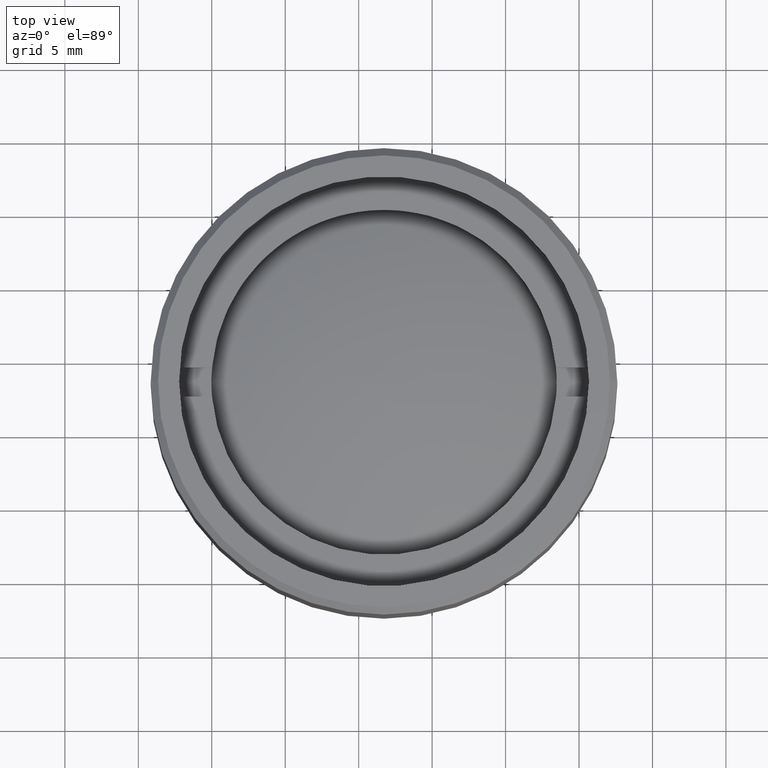
[diagram: clean part render]
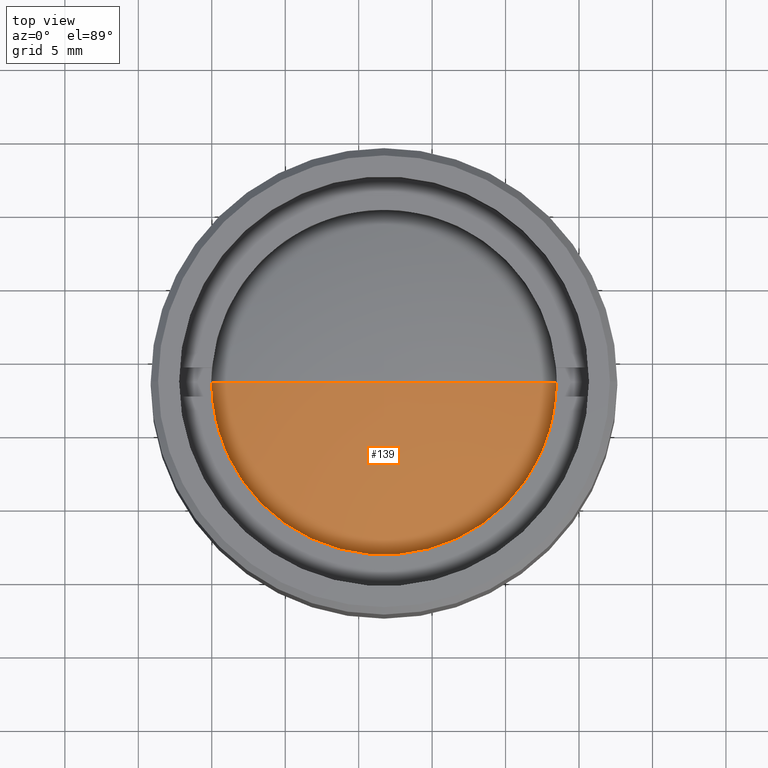
[diagram: same view with one face highlighted and labeled with its STEP entity id]
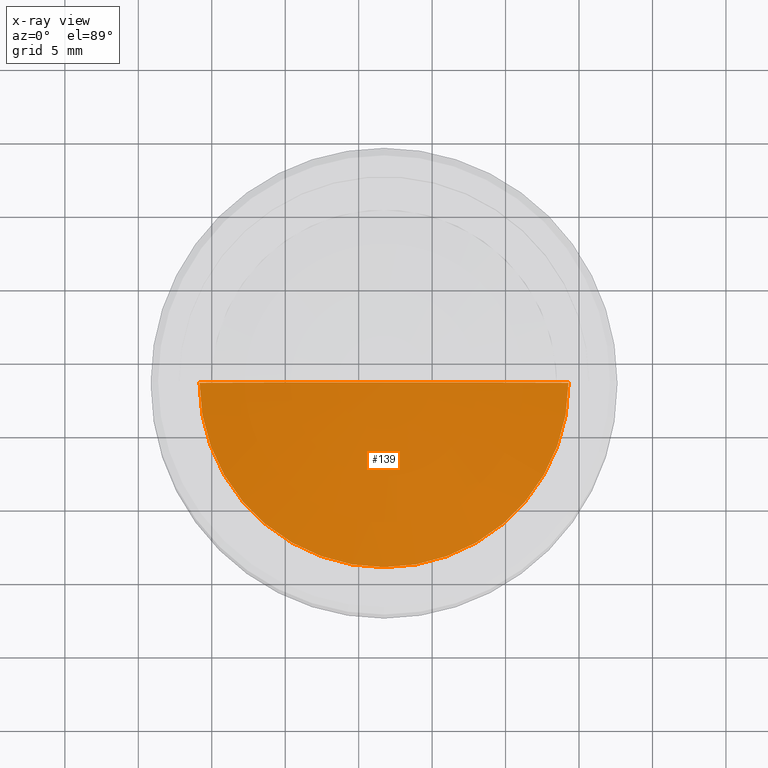
[diagram: x-ray of the same camera — body ghosted, the highlighted face saturated]
A machine part, top view. The second image highlights one B-rep face of the part: STEP entity #139.
The next image is the same camera in x-ray: the body ghosted, the highlighted face saturated — about 0% of this face is hidden behind the body in this view.
In plain terms, the highlighted spherical surface has radius 41.7 mm.
Its self-contained STEP definition (entity closure, byte-faithful):
#34 = DIRECTION ( 'NONE',  ( -1.726403459305454937E-17, 0.000000000000000000, 1.000000000000000000 ) ) ;
#97 = CIRCLE ( 'NONE', #906, 12.56024096385541888 ) ;
#139 = ADVANCED_FACE ( 'NONE', ( #186 ), #1303, .T. ) ;
#186 = FACE_OUTER_BOUND ( 'NONE', #710, .T. ) ;
#238 = DIRECTION ( 'NONE',  ( 0.000000000000000000, -0.000000000000000000, 1.000000000000000000 ) ) ;
#316 = VERTEX_POINT ( 'NONE', #950 ) ;
#403 = DIRECTION ( 'NONE',  ( -1.000000000000000000, 0.000000000000000000, -1.726403459305455862E-17 ) ) ;
#427 = ORIENTED_EDGE ( 'NONE', *, *, #938, .T. ) ;
#431 = CARTESIAN_POINT ( 'NONE',  ( 0.000000000000000000, 0.000000000000000000, -41.70000000000000284 ) ) ;
#648 = DIRECTION ( 'NONE',  ( -1.000000000000000000, 0.000000000000000000, 0.000000000000000000 ) ) ;
#710 = EDGE_LOOP ( 'NONE', ( #427, #1327 ) ) ;
#897 = CARTESIAN_POINT ( 'NONE',  ( 12.56024096385541888, 1.546743662103819948E-15, -1.936570231808620202 ) ) ;
#906 = AXIS2_PLACEMENT_3D ( 'NONE', #1605, #34, #403 ) ;
#938 = EDGE_CURVE ( 'NONE', #316, #1265, #97, .T. ) ;
#950 = CARTESIAN_POINT ( 'NONE',  ( -12.56024096385541888, 0.000000000000000000, -1.936570231808620202 ) ) ;
#983 = DIRECTION ( 'NONE',  ( 0.000000000000000000, -1.000000000000000000, 0.000000000000000000 ) ) ;
#990 = DIRECTION ( 'NONE',  ( 0.000000000000000000, 0.000000000000000000, -1.000000000000000000 ) ) ;
#1112 = AXIS2_PLACEMENT_3D ( 'NONE', #431, #983, #990 ) ;
#1265 = VERTEX_POINT ( 'NONE', #897 ) ;
#1277 = CIRCLE ( 'NONE', #1112, 41.70000000000000284 ) ;
#1303 = SPHERICAL_SURFACE ( 'NONE', #1597, 41.70000000000000284 ) ;
#1312 = CARTESIAN_POINT ( 'NONE',  ( 0.000000000000000000, 0.000000000000000000, -41.70000000000000284 ) ) ;
#1327 = ORIENTED_EDGE ( 'NONE', *, *, #1648, .T. ) ;
#1597 = AXIS2_PLACEMENT_3D ( 'NONE', #1312, #238, #648 ) ;
#1605 = CARTESIAN_POINT ( 'NONE',  ( -6.087019623592080029E-16, 0.000000000000000000, -1.936570231808620202 ) ) ;
#1648 = EDGE_CURVE ( 'NONE', #1265, #316, #1277, .T. ) ;